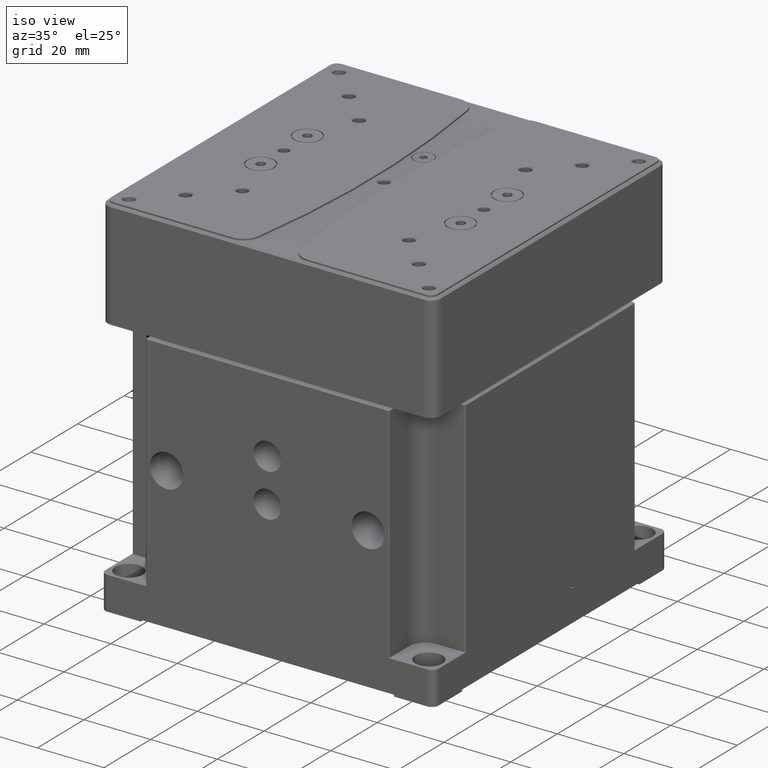
[diagram: clean part render]
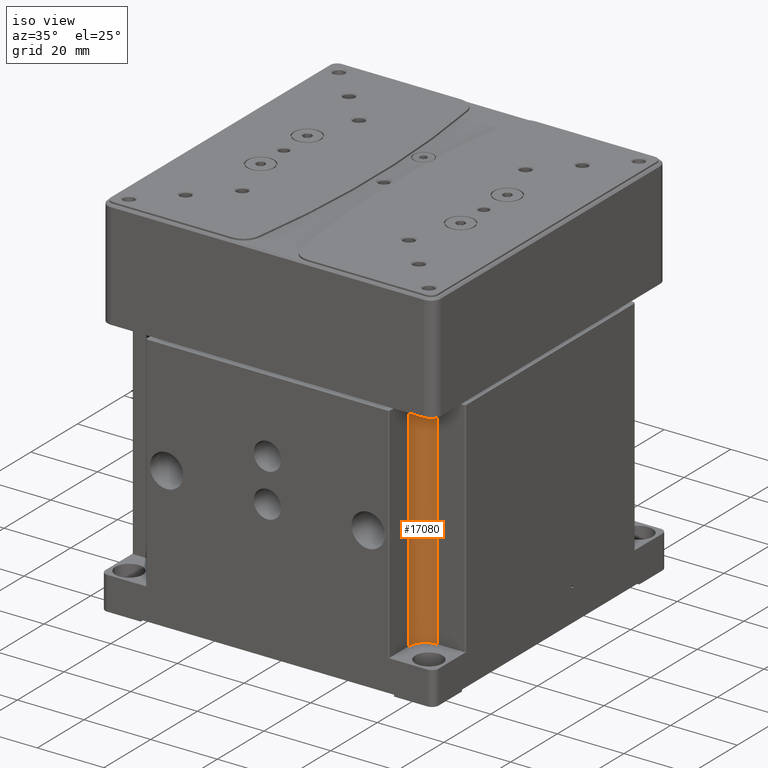
[diagram: same view with one face highlighted and labeled with its STEP entity id]
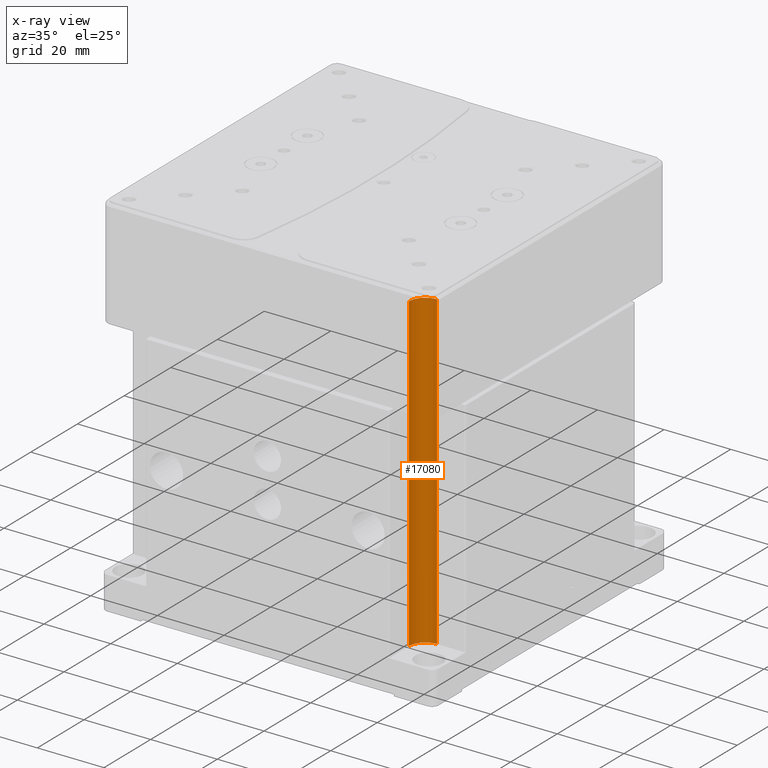
[diagram: x-ray of the same camera — body ghosted, the highlighted face saturated]
A machine part, iso view. The second image highlights one B-rep face of the part: STEP entity #17080.
The next image is the same camera in x-ray: the body ghosted, the highlighted face saturated — about 0% of this face is hidden behind the body in this view.
In plain terms, the highlighted cylindrical surface (edge-blend (fillet) strip) has radius 5 mm, axis along (0, 0, 1).
Its self-contained STEP definition (entity closure, byte-faithful):
#3735 = EDGE_CURVE ( 'NONE', #38111, #37865, #16245, .T. ) ;
#5674 = AXIS2_PLACEMENT_3D ( 'NONE', #6795, #17828, #31960 ) ;
#5688 = EDGE_CURVE ( 'NONE', #38066, #38111, #24632, .T. ) ;
#6795 = CARTESIAN_POINT ( 'NONE',  ( 41.49999999999999289, -41.50000000000000000, 93.50000000000000000 ) ) ;
#6918 = CARTESIAN_POINT ( 'NONE',  ( 36.50000000000000000, -41.50000000000000000, 0.000000000000000000 ) ) ;
#8020 = DIRECTION ( 'NONE',  ( 1.000000000000000000, 0.000000000000000000, 0.000000000000000000 ) ) ;
#8370 = CARTESIAN_POINT ( 'NONE',  ( 41.49999999999999289, -36.50000000000000711, 0.000000000000000000 ) ) ;
#9623 = EDGE_LOOP ( 'NONE', ( #24930, #15223, #35816, #41298 ) ) ;
#10850 = DIRECTION ( 'NONE',  ( -0.000000000000000000, -0.000000000000000000, -1.000000000000000000 ) ) ;
#13393 = CARTESIAN_POINT ( 'NONE',  ( 36.50000000000000000, -41.50000000000000000, 93.50000000000000000 ) ) ;
#15223 = ORIENTED_EDGE ( 'NONE', *, *, #41648, .T. ) ;
#16125 = DIRECTION ( 'NONE',  ( 0.000000000000000000, 0.000000000000000000, 1.000000000000000000 ) ) ;
#16245 = LINE ( 'NONE', #13393, #45595 ) ;
#16345 = DIRECTION ( 'NONE',  ( 0.000000000000000000, 0.000000000000000000, 1.000000000000000000 ) ) ;
#17080 = ADVANCED_FACE ( 'NONE', ( #18305 ), #32651, .F. ) ;
#17526 = VERTEX_POINT ( 'NONE', #21775 ) ;
#17828 = DIRECTION ( 'NONE',  ( 0.000000000000000000, 0.000000000000000000, 1.000000000000000000 ) ) ;
#18305 = FACE_OUTER_BOUND ( 'NONE', #9623, .T. ) ;
#21775 = CARTESIAN_POINT ( 'NONE',  ( 41.49999999999999289, -36.50000000000000711, 93.50000000000000000 ) ) ;
#22484 = DIRECTION ( 'NONE',  ( 1.000000000000000000, 0.000000000000000000, 0.000000000000000000 ) ) ;
#24108 = LINE ( 'NONE', #34923, #35395 ) ;
#24632 = CIRCLE ( 'NONE', #36708, 4.999999999999997335 ) ;
#24930 = ORIENTED_EDGE ( 'NONE', *, *, #5688, .F. ) ;
#25296 = CARTESIAN_POINT ( 'NONE',  ( 36.50000000000000000, -41.50000000000000000, 93.50000000000000000 ) ) ;
#27643 = EDGE_CURVE ( 'NONE', #37865, #17526, #29993, .T. ) ;
#27752 = DIRECTION ( 'NONE',  ( 0.000000000000000000, 0.000000000000000000, 1.000000000000000000 ) ) ;
#29993 = CIRCLE ( 'NONE', #32237, 4.999999999999997335 ) ;
#31960 = DIRECTION ( 'NONE',  ( 1.000000000000000000, 0.000000000000000000, 0.000000000000000000 ) ) ;
#32237 = AXIS2_PLACEMENT_3D ( 'NONE', #36298, #10850, #8020 ) ;
#32651 = CYLINDRICAL_SURFACE ( 'NONE', #5674, 4.999999999999997335 ) ;
#34923 = CARTESIAN_POINT ( 'NONE',  ( 41.49999999999999289, -36.50000000000000711, 93.50000000000000000 ) ) ;
#35395 = VECTOR ( 'NONE', #16345, 1000.000000000000000 ) ;
#35816 = ORIENTED_EDGE ( 'NONE', *, *, #27643, .F. ) ;
#36298 = CARTESIAN_POINT ( 'NONE',  ( 41.49999999999999289, -41.50000000000000000, 93.50000000000000000 ) ) ;
#36708 = AXIS2_PLACEMENT_3D ( 'NONE', #45104, #16125, #22484 ) ;
#37865 = VERTEX_POINT ( 'NONE', #25296 ) ;
#38066 = VERTEX_POINT ( 'NONE', #8370 ) ;
#38111 = VERTEX_POINT ( 'NONE', #6918 ) ;
#41298 = ORIENTED_EDGE ( 'NONE', *, *, #3735, .F. ) ;
#41648 = EDGE_CURVE ( 'NONE', #38066, #17526, #24108, .T. ) ;
#45104 = CARTESIAN_POINT ( 'NONE',  ( 41.49999999999999289, -41.50000000000000000, 0.000000000000000000 ) ) ;
#45595 = VECTOR ( 'NONE', #27752, 1000.000000000000000 ) ;